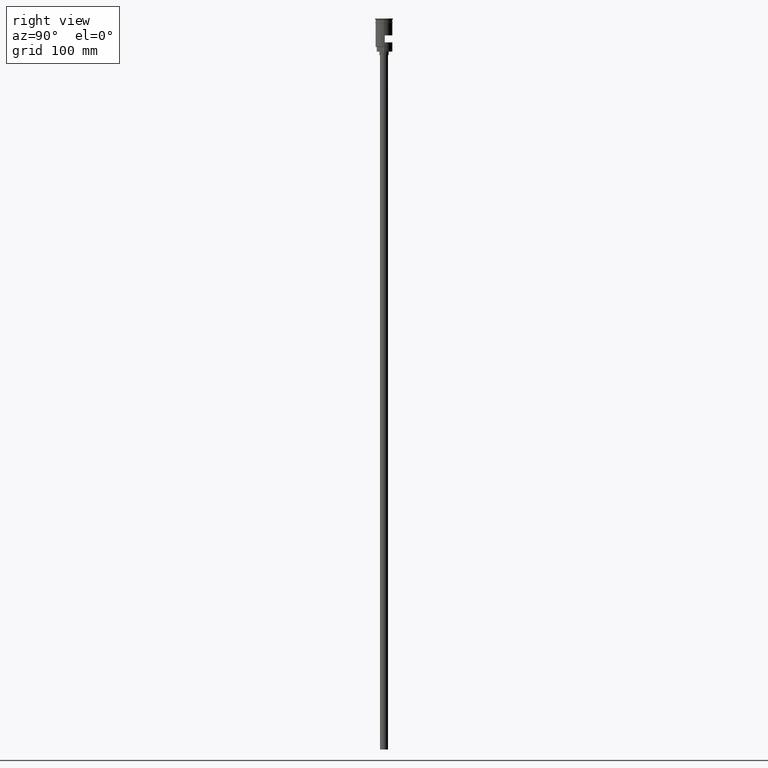
[diagram: clean part render]
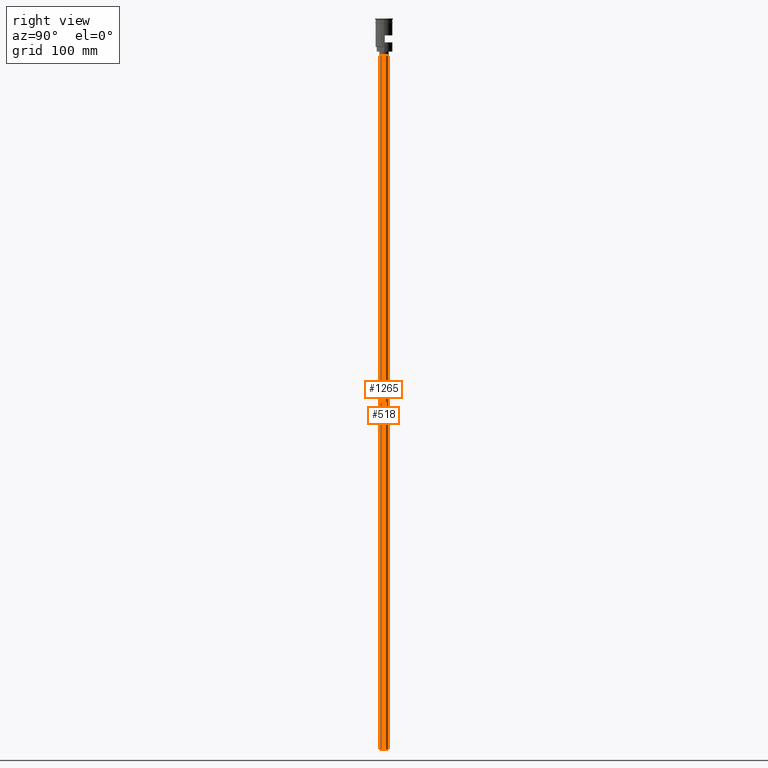
[diagram: same view with one multi-face feature highlighted, each face labeled with its STEP entity id]
A machine part, right view. The highlighted faces form ONE feature: a constant-radius fillet chain: 2 tangent blend faces with common blend radius 3.5 mm. The faces share edges in the B-rep.
Their STEP definitions:
[1] entity #518 (Cylinder):
#79 = ORIENTED_EDGE ( 'NONE', *, *, #786, .T. ) ;
#97 = CARTESIAN_POINT ( 'NONE',  ( 0.000000000000000000, 0.000000000000000000, -628.5000000000000000 ) ) ;
#106 = DIRECTION ( 'NONE',  ( 1.000000000000000000, 0.000000000000000000, 0.000000000000000000 ) ) ;
#216 = CARTESIAN_POINT ( 'NONE',  ( 0.000000000000000000, 0.000000000000000000, -628.5000000000000000 ) ) ;
#224 = VERTEX_POINT ( 'NONE', #1137 ) ;
#228 = DIRECTION ( 'NONE',  ( 0.000000000000000000, 0.000000000000000000, -1.000000000000000000 ) ) ;
#230 = CARTESIAN_POINT ( 'NONE',  ( -3.500000000000000444, 4.286263797015737088E-16, -628.5000000000000000 ) ) ;
#311 = DIRECTION ( 'NONE',  ( -0.000000000000000000, -0.000000000000000000, 1.000000000000000000 ) ) ;
#424 = VECTOR ( 'NONE', #311, 1000.000000000000000 ) ;
#435 = CARTESIAN_POINT ( 'NONE',  ( -3.500000000000000444, 4.286263797015737088E-16, -628.5000000000000000 ) ) ;
#474 = AXIS2_PLACEMENT_3D ( 'NONE', #216, #1454, #106 ) ;
#478 = AXIS2_PLACEMENT_3D ( 'NONE', #844, #228, #486 ) ;
#486 = DIRECTION ( 'NONE',  ( -1.000000000000000000, 0.000000000000000000, 0.000000000000000000 ) ) ;
#518 = ADVANCED_FACE ( 'NONE', ( #951 ), #814, .T. ) ;
#660 = LINE ( 'NONE', #435, #424 ) ;
#667 = CARTESIAN_POINT ( 'NONE',  ( 3.500000000000000444, 0.000000000000000000, -628.5000000000000000 ) ) ;
#749 = LINE ( 'NONE', #982, #1362 ) ;
#779 = EDGE_LOOP ( 'NONE', ( #845, #79, #1267, #939 ) ) ;
#786 = EDGE_CURVE ( 'NONE', #1144, #871, #660, .T. ) ;
#812 = DIRECTION ( 'NONE',  ( 0.000000000000000000, 0.000000000000000000, -1.000000000000000000 ) ) ;
#814 = CYLINDRICAL_SURFACE ( 'NONE', #474, 3.500000000000000444 ) ;
#836 = CIRCLE ( 'NONE', #1018, 3.500000000000000444 ) ;
#844 = CARTESIAN_POINT ( 'NONE',  ( 0.000000000000000000, 0.000000000000000000, -31.50000000000000000 ) ) ;
#845 = ORIENTED_EDGE ( 'NONE', *, *, #946, .F. ) ;
#871 = VERTEX_POINT ( 'NONE', #1515 ) ;
#939 = ORIENTED_EDGE ( 'NONE', *, *, #1090, .F. ) ;
#946 = EDGE_CURVE ( 'NONE', #1144, #1184, #836, .T. ) ;
#951 = FACE_OUTER_BOUND ( 'NONE', #779, .T. ) ;
#982 = CARTESIAN_POINT ( 'NONE',  ( 3.500000000000000444, 0.000000000000000000, -628.5000000000000000 ) ) ;
#1018 = AXIS2_PLACEMENT_3D ( 'NONE', #97, #812, #1320 ) ;
#1090 = EDGE_CURVE ( 'NONE', #1184, #224, #749, .T. ) ;
#1137 = CARTESIAN_POINT ( 'NONE',  ( 3.500000000000000444, 0.000000000000000000, -31.50000000000000000 ) ) ;
#1144 = VERTEX_POINT ( 'NONE', #230 ) ;
#1179 = CIRCLE ( 'NONE', #478, 3.500000000000000444 ) ;
#1184 = VERTEX_POINT ( 'NONE', #667 ) ;
#1243 = DIRECTION ( 'NONE',  ( -0.000000000000000000, -0.000000000000000000, 1.000000000000000000 ) ) ;
#1267 = ORIENTED_EDGE ( 'NONE', *, *, #1386, .T. ) ;
#1320 = DIRECTION ( 'NONE',  ( -1.000000000000000000, 0.000000000000000000, 0.000000000000000000 ) ) ;
#1362 = VECTOR ( 'NONE', #1243, 1000.000000000000000 ) ;
#1386 = EDGE_CURVE ( 'NONE', #871, #224, #1179, .T. ) ;
#1454 = DIRECTION ( 'NONE',  ( -0.000000000000000000, -0.000000000000000000, 1.000000000000000000 ) ) ;
#1515 = CARTESIAN_POINT ( 'NONE',  ( -3.500000000000000444, 4.286263797015737088E-16, -31.50000000000000000 ) ) ;
[2] entity #1265 (Cylinder):
#30 = DIRECTION ( 'NONE',  ( -0.000000000000000000, -0.000000000000000000, 1.000000000000000000 ) ) ;
#123 = CARTESIAN_POINT ( 'NONE',  ( 0.000000000000000000, 0.000000000000000000, -31.50000000000000000 ) ) ;
#224 = VERTEX_POINT ( 'NONE', #1137 ) ;
#230 = CARTESIAN_POINT ( 'NONE',  ( -3.500000000000000444, 4.286263797015737088E-16, -628.5000000000000000 ) ) ;
#311 = DIRECTION ( 'NONE',  ( -0.000000000000000000, -0.000000000000000000, 1.000000000000000000 ) ) ;
#335 = ORIENTED_EDGE ( 'NONE', *, *, #976, .F. ) ;
#342 = DIRECTION ( 'NONE',  ( -1.000000000000000000, 0.000000000000000000, 0.000000000000000000 ) ) ;
#424 = VECTOR ( 'NONE', #311, 1000.000000000000000 ) ;
#435 = CARTESIAN_POINT ( 'NONE',  ( -3.500000000000000444, 4.286263797015737088E-16, -628.5000000000000000 ) ) ;
#482 = ORIENTED_EDGE ( 'NONE', *, *, #786, .F. ) ;
#528 = AXIS2_PLACEMENT_3D ( 'NONE', #1055, #1579, #342 ) ;
#643 = CARTESIAN_POINT ( 'NONE',  ( 0.000000000000000000, 0.000000000000000000, -628.5000000000000000 ) ) ;
#656 = AXIS2_PLACEMENT_3D ( 'NONE', #123, #977, #1473 ) ;
#660 = LINE ( 'NONE', #435, #424 ) ;
#665 = EDGE_LOOP ( 'NONE', ( #482, #335, #1178, #852 ) ) ;
#667 = CARTESIAN_POINT ( 'NONE',  ( 3.500000000000000444, 0.000000000000000000, -628.5000000000000000 ) ) ;
#698 = FACE_OUTER_BOUND ( 'NONE', #665, .T. ) ;
#709 = CIRCLE ( 'NONE', #656, 3.500000000000000444 ) ;
#717 = EDGE_CURVE ( 'NONE', #224, #871, #709, .T. ) ;
#749 = LINE ( 'NONE', #982, #1362 ) ;
#770 = CYLINDRICAL_SURFACE ( 'NONE', #1126, 3.500000000000000444 ) ;
#786 = EDGE_CURVE ( 'NONE', #1144, #871, #660, .T. ) ;
#852 = ORIENTED_EDGE ( 'NONE', *, *, #717, .T. ) ;
#871 = VERTEX_POINT ( 'NONE', #1515 ) ;
#976 = EDGE_CURVE ( 'NONE', #1184, #1144, #1096, .T. ) ;
#977 = DIRECTION ( 'NONE',  ( 0.000000000000000000, 0.000000000000000000, -1.000000000000000000 ) ) ;
#982 = CARTESIAN_POINT ( 'NONE',  ( 3.500000000000000444, 0.000000000000000000, -628.5000000000000000 ) ) ;
#1055 = CARTESIAN_POINT ( 'NONE',  ( 0.000000000000000000, 0.000000000000000000, -628.5000000000000000 ) ) ;
#1090 = EDGE_CURVE ( 'NONE', #1184, #224, #749, .T. ) ;
#1096 = CIRCLE ( 'NONE', #528, 3.500000000000000444 ) ;
#1126 = AXIS2_PLACEMENT_3D ( 'NONE', #643, #30, #1274 ) ;
#1137 = CARTESIAN_POINT ( 'NONE',  ( 3.500000000000000444, 0.000000000000000000, -31.50000000000000000 ) ) ;
#1144 = VERTEX_POINT ( 'NONE', #230 ) ;
#1178 = ORIENTED_EDGE ( 'NONE', *, *, #1090, .T. ) ;
#1184 = VERTEX_POINT ( 'NONE', #667 ) ;
#1243 = DIRECTION ( 'NONE',  ( -0.000000000000000000, -0.000000000000000000, 1.000000000000000000 ) ) ;
#1265 = ADVANCED_FACE ( 'NONE', ( #698 ), #770, .T. ) ;
#1274 = DIRECTION ( 'NONE',  ( 1.000000000000000000, 0.000000000000000000, 0.000000000000000000 ) ) ;
#1362 = VECTOR ( 'NONE', #1243, 1000.000000000000000 ) ;
#1473 = DIRECTION ( 'NONE',  ( -1.000000000000000000, 0.000000000000000000, 0.000000000000000000 ) ) ;
#1515 = CARTESIAN_POINT ( 'NONE',  ( -3.500000000000000444, 4.286263797015737088E-16, -31.50000000000000000 ) ) ;
#1579 = DIRECTION ( 'NONE',  ( 0.000000000000000000, 0.000000000000000000, -1.000000000000000000 ) ) ;